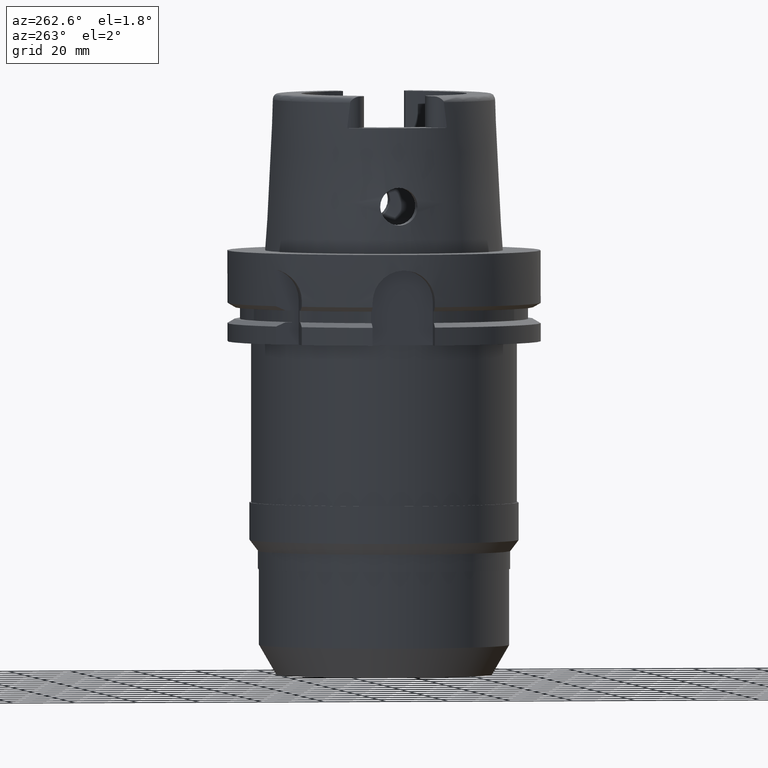
[diagram: clean part render]
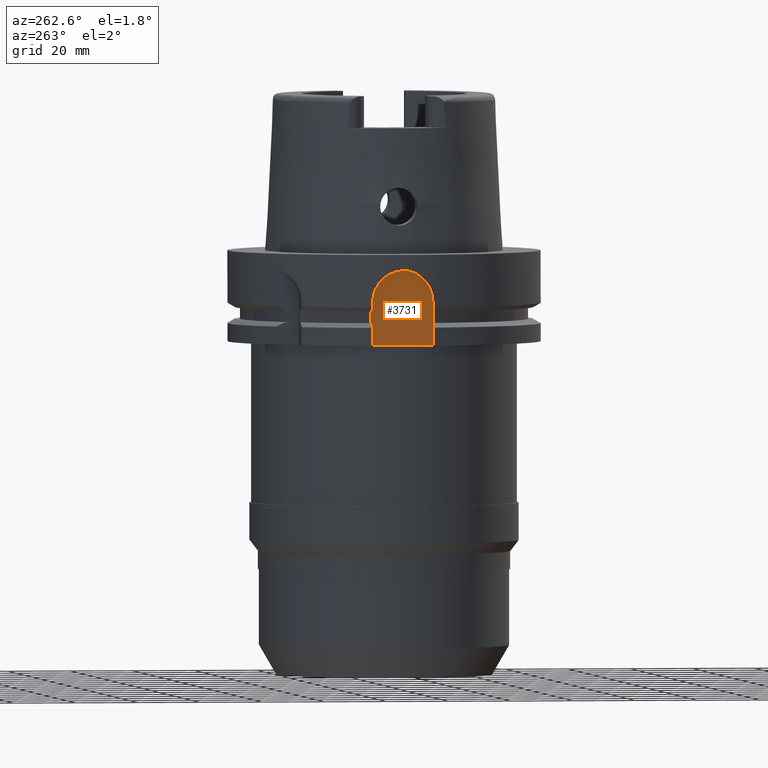
[diagram: same view with one face highlighted and labeled with its STEP entity id]
A machine part, auxiliary view. The second image highlights one B-rep face of the part: STEP entity #3731.
In plain terms, the highlighted planar face has unit normal (1, 0, 0).
Its self-contained STEP definition (entity closure, byte-faithful):
#1443=DIRECTION('',(0.E0,0.E0,1.E0));
#1444=VECTOR('',#1443,1.4E1);
#1445=CARTESIAN_POINT('',(-4.4E1,-1.E1,-2.9E1));
#1446=LINE('',#1445,#1444);
#1457=DIRECTION('',(0.E0,1.E0,0.E0));
#1458=VECTOR('',#1457,2.E1);
#1459=CARTESIAN_POINT('',(-4.4E1,-1.E1,-2.9E1));
#1460=LINE('',#1459,#1458);
#1464=CARTESIAN_POINT('',(-4.4E1,0.E0,-1.5E1));
#1465=DIRECTION('',(1.E0,0.E0,0.E0));
#1466=DIRECTION('',(0.E0,1.E0,0.E0));
#1467=AXIS2_PLACEMENT_3D('',#1464,#1465,#1466);
#1472=CARTESIAN_POINT('',(-4.4E1,0.E0,-1.5E1));
#1473=DIRECTION('',(1.E0,0.E0,0.E0));
#1474=DIRECTION('',(0.E0,0.E0,1.E0));
#1475=AXIS2_PLACEMENT_3D('',#1472,#1473,#1474);
#1494=DIRECTION('',(0.E0,0.E0,-1.E0));
#1495=VECTOR('',#1494,1.4E1);
#1496=CARTESIAN_POINT('',(-4.4E1,1.E1,-1.5E1));
#1497=LINE('',#1496,#1495);
#2458=CARTESIAN_POINT('',(-4.4E1,1.E1,-2.9E1));
#2459=VERTEX_POINT('',#2458);
#2460=CARTESIAN_POINT('',(-4.4E1,-1.E1,-2.9E1));
#2461=VERTEX_POINT('',#2460);
#2504=CARTESIAN_POINT('',(-4.4E1,-1.E1,-1.5E1));
#2505=VERTEX_POINT('',#2504);
#2517=CARTESIAN_POINT('',(-4.4E1,1.E1,-1.5E1));
#2518=VERTEX_POINT('',#2517);
#2519=CARTESIAN_POINT('',(-4.4E1,0.E0,-5.E0));
#2520=VERTEX_POINT('',#2519);
#3716=CARTESIAN_POINT('',(-4.4E1,0.E0,0.E0));
#3717=DIRECTION('',(1.E0,0.E0,0.E0));
#3718=DIRECTION('',(0.E0,0.E0,1.E0));
#3719=AXIS2_PLACEMENT_3D('',#3716,#3717,#3718);
#3720=PLANE('',#3719);
#3721=ORIENTED_EDGE('',*,*,#3534,.T.);
#3723=ORIENTED_EDGE('',*,*,#3722,.F.);
#3725=ORIENTED_EDGE('',*,*,#3724,.T.);
#3727=ORIENTED_EDGE('',*,*,#3726,.T.);
#3728=ORIENTED_EDGE('',*,*,#3696,.F.);
#3729=EDGE_LOOP('',(#3721,#3723,#3725,#3727,#3728));
#3730=FACE_OUTER_BOUND('',#3729,.F.);
#1468=CIRCLE('',#1467,1.E1);
#1476=CIRCLE('',#1475,1.E1);
#3534=EDGE_CURVE('',#2461,#2459,#1460,.T.);
#3696=EDGE_CURVE('',#2461,#2505,#1446,.T.);
#3722=EDGE_CURVE('',#2518,#2459,#1497,.T.);
#3724=EDGE_CURVE('',#2518,#2520,#1468,.T.);
#3726=EDGE_CURVE('',#2520,#2505,#1476,.T.);
#3731=ADVANCED_FACE('',(#3730),#3720,.F.);